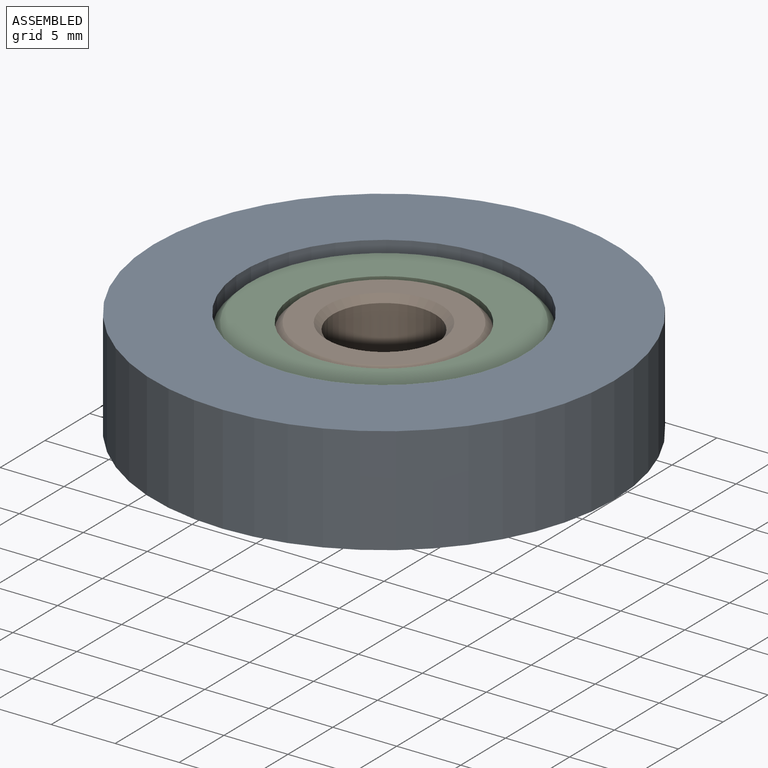
[diagram: assembled view]
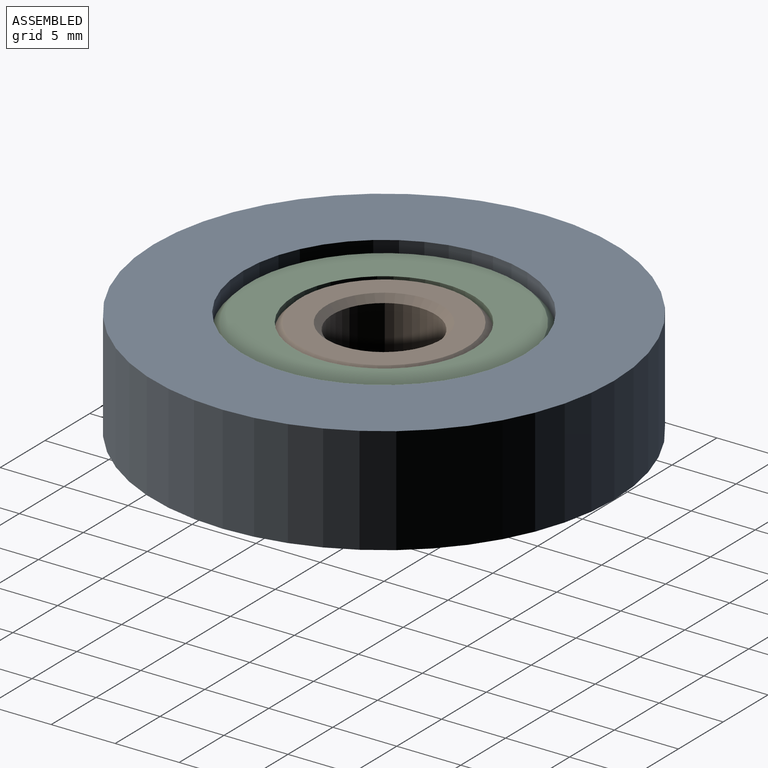
[diagram: assembled view, second angle]
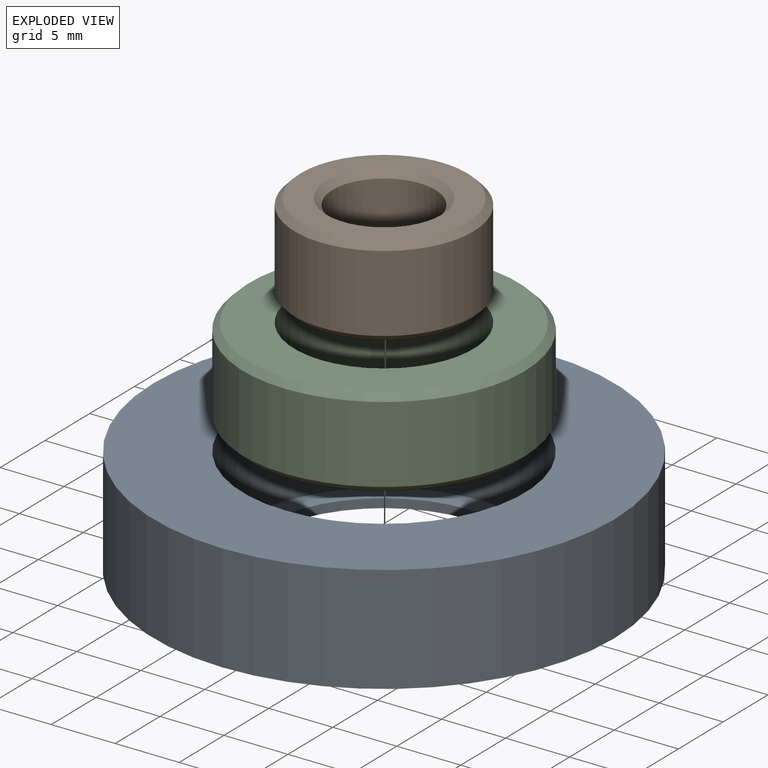
[diagram: exploded view]
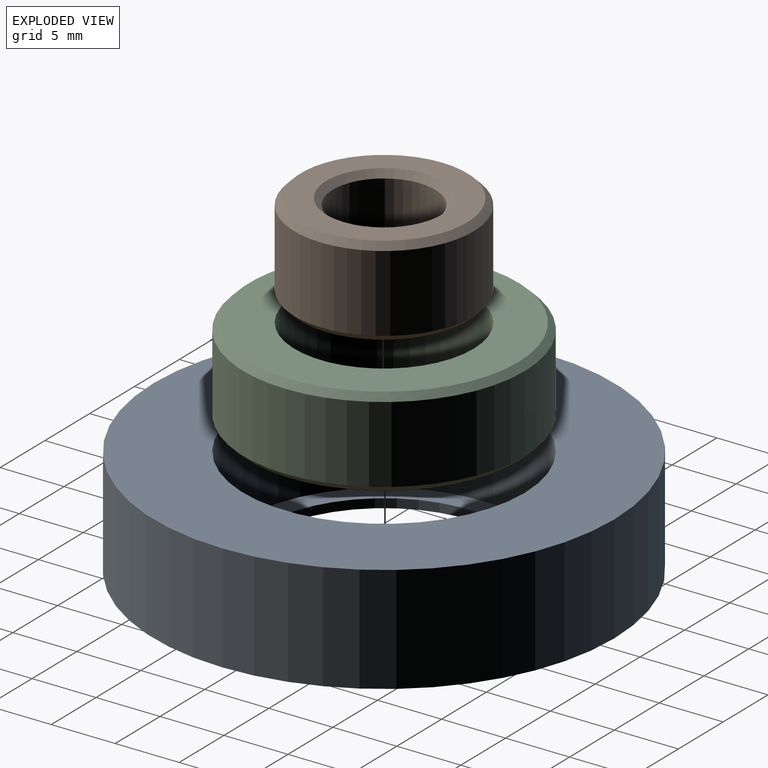
[diagram: exploded view, second angle]
ASSEMBLY  parts=3 mates=2
PART A: 6 faces, bbox 36x36x8.4 mm
  f0: cylinder r=11mm len=22mm, axis (0,0,-1), area 532.2mm2, adj f2,f4
  f1: cylinder r=18mm len=36mm, axis (0,0,-1), area 950mm2, adj f2,f3
  f2: plane 36x36mm, normal (0,0,1), area 637.7mm2, adj f0,f1
  f3: plane 36x36mm, normal (0,0,-1), area 740.3mm2, adj f1,f5
  f4: plane 22x22mm, normal (0,0,1), area 102.5mm2, adj f0,f5
  f5: cylinder r=9.4mm len=18.8mm, axis (0,0,-1), area 41.3mm2, adj f3,f4
PART B: 8 faces, bbox 14x14x7 mm
  f0: plane 13x13mm, normal (0,0,1), area 69.1mm2, adj f4,f7
  f1: plane 13x13mm, normal (0,0,-1), area 69.1mm2, adj f5,f6
  f2: cylinder r=4mm len=8mm, axis (0,0,-1), area 150.8mm2, adj f6,f7
  f3: cylinder r=7mm len=14mm, axis (0,0,1), area 263.9mm2, adj f4,f5
  f4: cone r=6.5mm half-angle=45deg, axis (0,0,-1), area 30mm2, adj f0,f3
  f5: cone r=7mm half-angle=45deg, axis (0,0,1), area 30mm2, adj f1,f3
  f6: cone r=4.5mm half-angle=45deg, axis (0,0,-1), area 18.9mm2, adj f1,f2
  f7: cone r=4mm half-angle=45deg, axis (0,0,1), area 18.9mm2, adj f0,f2
PART C: 6 faces, bbox 22x22x7 mm
  f0: plane 21x21mm, normal (0,0,1), area 192.4mm2, adj f3,f5
  f1: cylinder r=11mm len=22mm, axis (0,0,-1), area 414.7mm2, adj f4,f5
  f2: plane 21x21mm, normal (0,0,-1), area 192.4mm2, adj f3,f4
  f3: cylinder r=7mm len=14mm, axis (0,0,1), area 307.9mm2, adj f0,f2
  f4: cone r=11mm half-angle=45deg, axis (0,0,1), area 47.8mm2, adj f1,f2
  f5: cone r=10.5mm half-angle=45deg, axis (0,0,-1), area 47.8mm2, adj f0,f1
PLACE A rot(axis=(0,0,1),90deg) t=(0,0,0)mm
PLACE B at identity
PLACE C rot(axis=(0,0,1),90deg) t=(0,0,0)mm
MATE revolute C.f3 <-> B.f3  axis (0,0,1) through (0,0,0)mm
MATE fastened C.f1 <-> A.f1  axis (0,0,-1) through (0,0,-3.5)mm
